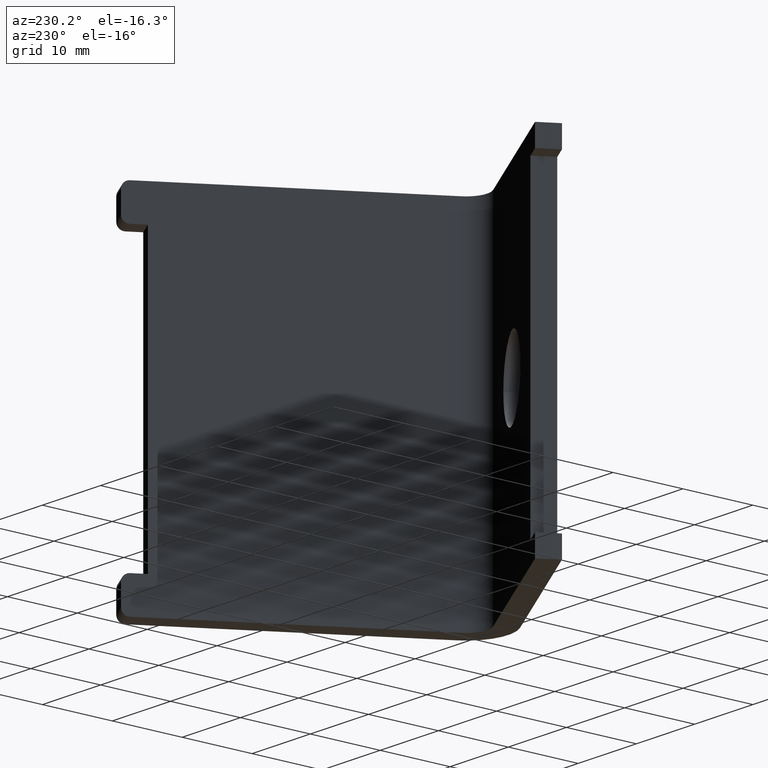
[diagram: clean part render]
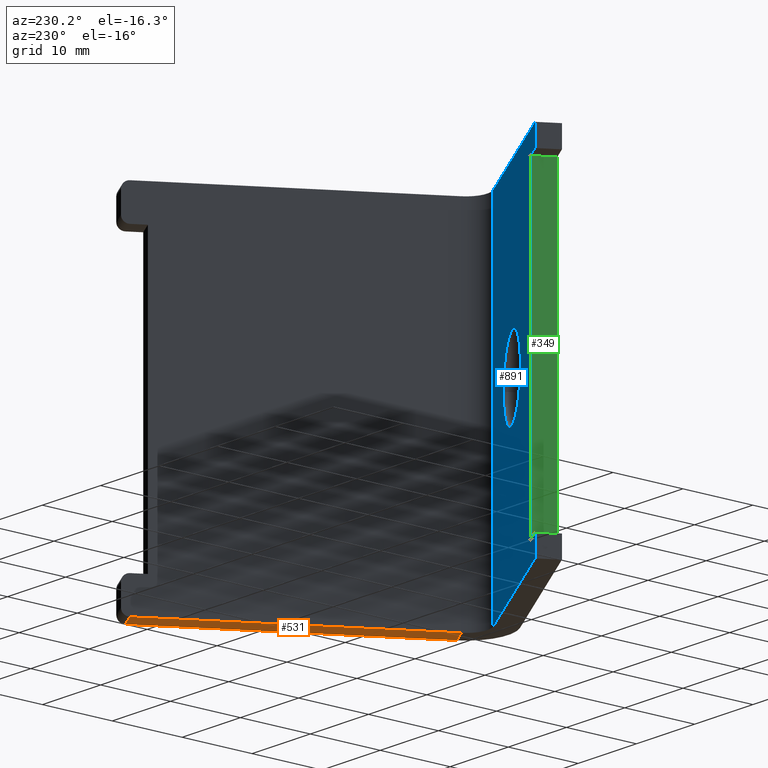
[diagram: same view with three faces highlighted in distinct colors, each labeled with its STEP entity id]
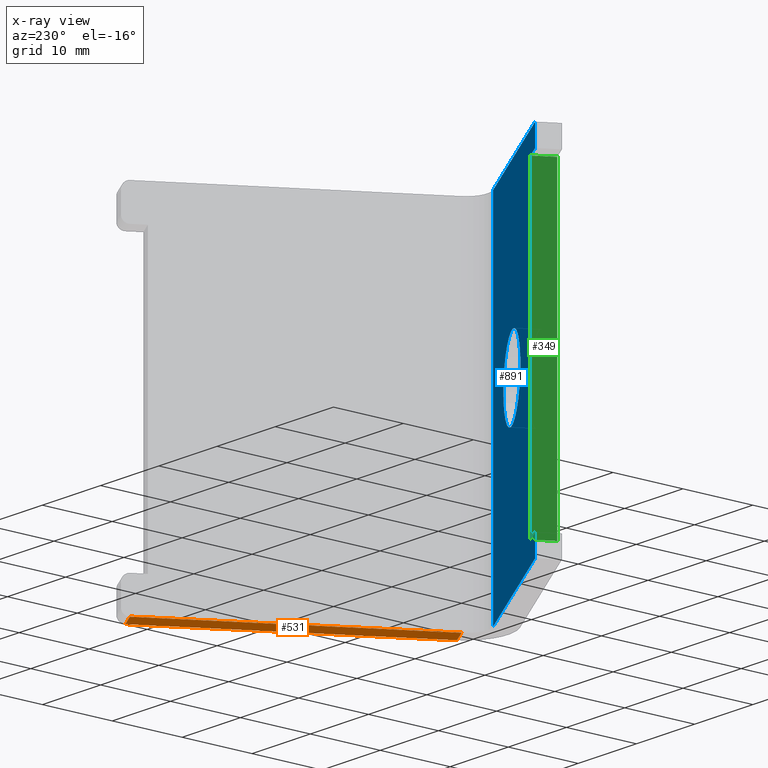
[diagram: x-ray of the same camera — body ghosted, the three highlighted faces saturated]
A machine part, auxiliary view with three faces highlighted in distinct colors.
The next image is the same camera in x-ray (body ghosted, the three faces saturated) — at least one of them is partly hidden behind the body in this view.
Their STEP definitions:

[orange] entity #531 — the highlighted planar face has unit normal (0, -0, 1).
#1 = LINE ( 'NONE', #845, #650 ) ;
#5 = FACE_OUTER_BOUND ( 'NONE', #496, .T. ) ;
#38 = VERTEX_POINT ( 'NONE', #241 ) ;
#57 = EDGE_CURVE ( 'NONE', #443, #668, #616, .T. ) ;
#65 = VECTOR ( 'NONE', #262, 1000.000000000000114 ) ;
#102 = VERTEX_POINT ( 'NONE', #750 ) ;
#110 = VECTOR ( 'NONE', #184, 1000.000000000000000 ) ;
#138 = AXIS2_PLACEMENT_3D ( 'NONE', #551, #300, #593 ) ;
#145 = DIRECTION ( 'NONE',  ( 0.5000000000000041078, 0.8660254037844363761, -0.000000000000000000 ) ) ;
#184 = DIRECTION ( 'NONE',  ( 0.5000000000000041078, 0.8660254037844363761, 0.000000000000000000 ) ) ;
#188 = CARTESIAN_POINT ( 'NONE',  ( 614.6829510954501075, 1028.447854427240600, -25.00000000000000000 ) ) ;
#189 = ORIENTED_EDGE ( 'NONE', *, *, #57, .T. ) ;
#240 = EDGE_CURVE ( 'NONE', #38, #102, #1, .T. ) ;
#241 = CARTESIAN_POINT ( 'NONE',  ( 633.1812291224796354, 1060.487811822590402, -25.00000000000000000 ) ) ;
#257 = CARTESIAN_POINT ( 'NONE',  ( 610.5848748840967346, 1027.349778215887454, -25.00000000000000000 ) ) ;
#262 = DIRECTION ( 'NONE',  ( -0.8660254037844408170, 0.4999999999999963363, -0.000000000000000000 ) ) ;
#277 = PLANE ( 'NONE',  #138 ) ;
#300 = DIRECTION ( 'NONE',  ( 0.000000000000000000, -0.000000000000000000, 1.000000000000000000 ) ) ;
#315 = EDGE_CURVE ( 'NONE', #443, #38, #562, .T. ) ;
#354 = DIRECTION ( 'NONE',  ( -0.8660254037844363761, 0.5000000000000041078, 0.000000000000000000 ) ) ;
#426 = ORIENTED_EDGE ( 'NONE', *, *, #703, .T. ) ;
#443 = VERTEX_POINT ( 'NONE', #188 ) ;
#461 = LINE ( 'NONE', #257, #110 ) ;
#496 = EDGE_LOOP ( 'NONE', ( #514, #747, #189, #426 ) ) ;
#514 = ORIENTED_EDGE ( 'NONE', *, *, #240, .F. ) ;
#531 = ADVANCED_FACE ( 'NONE', ( #5 ), #277, .F. ) ;
#551 = CARTESIAN_POINT ( 'NONE',  ( 610.5848748840967346, 1027.349778215887454, -25.00000000000000000 ) ) ;
#562 = LINE ( 'NONE', #786, #804 ) ;
#593 = DIRECTION ( 'NONE',  ( 0.5000000000000041078, 0.8660254037844363761, 0.000000000000000000 ) ) ;
#616 = LINE ( 'NONE', #770, #65 ) ;
#650 = VECTOR ( 'NONE', #354, 1000.000000000000000 ) ;
#668 = VERTEX_POINT ( 'NONE', #893 ) ;
#703 = EDGE_CURVE ( 'NONE', #668, #102, #461, .T. ) ;
#747 = ORIENTED_EDGE ( 'NONE', *, *, #315, .F. ) ;
#750 = CARTESIAN_POINT ( 'NONE',  ( 630.5831529111263762, 1061.987811822590402, -25.00000000000000000 ) ) ;
#770 = CARTESIAN_POINT ( 'NONE',  ( 612.0848748840968483, 1029.947854427240600, -25.00000000000000000 ) ) ;
#786 = CARTESIAN_POINT ( 'NONE',  ( 613.1829510954501075, 1025.849778215887227, -25.00000000000000000 ) ) ;
#804 = VECTOR ( 'NONE', #145, 1000.000000000000000 ) ;
#845 = CARTESIAN_POINT ( 'NONE',  ( 630.5831529111263762, 1061.987811822590402, -25.00000000000000000 ) ) ;
#893 = CARTESIAN_POINT ( 'NONE',  ( 612.0848748840968483, 1029.947854427240600, -25.00000000000000000 ) ) ;

[blue] entity #891 — the highlighted planar face has unit normal (0.5, 0.866, -0).
#27 = VERTEX_POINT ( 'NONE', #752 ) ;
#32 = CARTESIAN_POINT ( 'NONE',  ( 592.7385822518555187, 1037.653340071148705, 6.735557395301680737E-16 ) ) ;
#43 = CARTESIAN_POINT ( 'NONE',  ( 587.1094167670474917, 1040.903340279115355, -22.00000000000000355 ) ) ;
#50 = VECTOR ( 'NONE', #217, 1000.000000000000000 ) ;
#125 = CARTESIAN_POINT ( 'NONE',  ( 584.5113405556609223, 1042.403340279134682, 25.00000000000000000 ) ) ;
#135 = ORIENTED_EDGE ( 'NONE', *, *, #888, .F. ) ;
#142 = EDGE_CURVE ( 'NONE', #594, #227, #181, .T. ) ;
#144 = VERTEX_POINT ( 'NONE', #764 ) ;
#154 = AXIS2_PLACEMENT_3D ( 'NONE', #697, #264, #766 ) ;
#157 = VERTEX_POINT ( 'NONE', #621 ) ;
#161 = EDGE_CURVE ( 'NONE', #594, #180, #446, .T. ) ;
#170 = EDGE_CURVE ( 'NONE', #227, #27, #779, .T. ) ;
#180 = VERTEX_POINT ( 'NONE', #550 ) ;
#181 = LINE ( 'NONE', #125, #791 ) ;
#186 = FACE_BOUND ( 'NONE', #831, .T. ) ;
#209 = DIRECTION ( 'NONE',  ( 0.8660254037844403729, -0.4999999999999969469, 0.000000000000000000 ) ) ;
#212 = LINE ( 'NONE', #431, #50 ) ;
#217 = DIRECTION ( 'NONE',  ( -0.000000000000000000, -0.000000000000000000, -1.000000000000000000 ) ) ;
#227 = VERTEX_POINT ( 'NONE', #558 ) ;
#233 = ORIENTED_EDGE ( 'NONE', *, *, #526, .F. ) ;
#242 = DIRECTION ( 'NONE',  ( -0.8660254037844314912, 0.5000000000000124345, -0.000000000000000000 ) ) ;
#264 = DIRECTION ( 'NONE',  ( 0.4999999999999970024, 0.8660254037844404840, -0.000000000000000000 ) ) ;
#270 = CARTESIAN_POINT ( 'NONE',  ( 584.5113405556609223, 1042.403340279134682, 25.00000000000000000 ) ) ;
#273 = CARTESIAN_POINT ( 'NONE',  ( 597.5017219726637450, 1034.903340071152343, 0.000000000000000000 ) ) ;
#278 = EDGE_CURVE ( 'NONE', #820, #144, #857, .T. ) ;
#310 = VERTEX_POINT ( 'NONE', #853 ) ;
#314 = EDGE_CURVE ( 'NONE', #310, #27, #345, .T. ) ;
#320 = ORIENTED_EDGE ( 'NONE', *, *, #762, .F. ) ;
#335 = DIRECTION ( 'NONE',  ( -0.8660254037844404840, 0.4999999999999969469, 0.000000000000000000 ) ) ;
#340 = DIRECTION ( 'NONE',  ( 0.4999999999999970024, 0.8660254037844404840, -0.000000000000000000 ) ) ;
#345 = LINE ( 'NONE', #705, #620 ) ;
#353 = CARTESIAN_POINT ( 'NONE',  ( 584.5113405556609223, 1042.403340279134682, 25.00000000000000000 ) ) ;
#357 = VERTEX_POINT ( 'NONE', #32 ) ;
#362 = VECTOR ( 'NONE', #847, 1000.000000000000000 ) ;
#363 = CARTESIAN_POINT ( 'NONE',  ( 584.5113405556609223, 1042.403340279134682, 25.00000000000000000 ) ) ;
#381 = VECTOR ( 'NONE', #390, 1000.000000000000000 ) ;
#384 = CIRCLE ( 'NONE', #895, 5.499999999992874145 ) ;
#390 = DIRECTION ( 'NONE',  ( -0.000000000000000000, -0.000000000000000000, -1.000000000000000000 ) ) ;
#407 = DIRECTION ( 'NONE',  ( 0.8660254037844403729, -0.4999999999999969469, 0.000000000000000000 ) ) ;
#414 = FACE_OUTER_BOUND ( 'NONE', #645, .T. ) ;
#416 = CARTESIAN_POINT ( 'NONE',  ( 587.1094167670474917, 1040.903340279115355, -22.00000000000000355 ) ) ;
#429 = ORIENTED_EDGE ( 'NONE', *, *, #444, .T. ) ;
#431 = CARTESIAN_POINT ( 'NONE',  ( 587.1094167670474917, 1040.903340279115355, -22.00000000000000355 ) ) ;
#434 = CARTESIAN_POINT ( 'NONE',  ( 607.9867986727432481, 1028.849778215887454, 25.00000000000000000 ) ) ;
#444 = EDGE_CURVE ( 'NONE', #618, #180, #471, .T. ) ;
#446 = LINE ( 'NONE', #908, #381 ) ;
#471 = LINE ( 'NONE', #600, #849 ) ;
#494 = ORIENTED_EDGE ( 'NONE', *, *, #314, .F. ) ;
#526 = EDGE_CURVE ( 'NONE', #144, #310, #774, .T. ) ;
#528 = ORIENTED_EDGE ( 'NONE', *, *, #170, .T. ) ;
#543 = PLANE ( 'NONE',  #741 ) ;
#550 = CARTESIAN_POINT ( 'NONE',  ( 584.5113405556942325, 1042.403340279115582, 22.00000000000000355 ) ) ;
#558 = CARTESIAN_POINT ( 'NONE',  ( 607.9867986727432481, 1028.849778215887454, 25.00000000000000000 ) ) ;
#581 = EDGE_CURVE ( 'NONE', #618, #820, #212, .T. ) ;
#594 = VERTEX_POINT ( 'NONE', #363 ) ;
#595 = ORIENTED_EDGE ( 'NONE', *, *, #161, .F. ) ;
#600 = CARTESIAN_POINT ( 'NONE',  ( 587.1094167670474917, 1040.903340279115355, 22.00000000000000355 ) ) ;
#617 = ORIENTED_EDGE ( 'NONE', *, *, #581, .F. ) ;
#618 = VERTEX_POINT ( 'NONE', #868 ) ;
#620 = VECTOR ( 'NONE', #209, 1000.000000000000000 ) ;
#621 = CARTESIAN_POINT ( 'NONE',  ( 602.2648616934720849, 1032.153340071155753, 0.000000000000000000 ) ) ;
#629 = DIRECTION ( 'NONE',  ( -0.000000000000000000, -0.000000000000000000, -1.000000000000000000 ) ) ;
#645 = EDGE_LOOP ( 'NONE', ( #807, #617, #429, #595, #850, #528, #494, #233 ) ) ;
#664 = VECTOR ( 'NONE', #769, 1000.000000000000114 ) ;
#690 = DIRECTION ( 'NONE',  ( 0.4999999999999969469, 0.8660254037844404840, -0.000000000000000000 ) ) ;
#697 = CARTESIAN_POINT ( 'NONE',  ( 597.5017219726637450, 1034.903340071152343, 0.000000000000000000 ) ) ;
#705 = CARTESIAN_POINT ( 'NONE',  ( 584.5113405556609223, 1042.403340279134682, -25.00000000000000000 ) ) ;
#709 = VECTOR ( 'NONE', #629, 1000.000000000000000 ) ;
#728 = CIRCLE ( 'NONE', #154, 5.499999999992874145 ) ;
#741 = AXIS2_PLACEMENT_3D ( 'NONE', #270, #690, #335 ) ;
#752 = CARTESIAN_POINT ( 'NONE',  ( 607.9867986727432481, 1028.849778215887454, -25.00000000000000000 ) ) ;
#762 = EDGE_CURVE ( 'NONE', #157, #357, #384, .T. ) ;
#764 = CARTESIAN_POINT ( 'NONE',  ( 584.5113405556942325, 1042.403340279115582, -22.00000000000000355 ) ) ;
#766 = DIRECTION ( 'NONE',  ( -0.8660254037844344888, 0.5000000000000073275, 0.000000000000000000 ) ) ;
#769 = DIRECTION ( 'NONE',  ( -0.8660254037844314912, 0.5000000000000124345, -0.000000000000000000 ) ) ;
#774 = LINE ( 'NONE', #353, #709 ) ;
#779 = LINE ( 'NONE', #434, #362 ) ;
#791 = VECTOR ( 'NONE', #407, 1000.000000000000000 ) ;
#807 = ORIENTED_EDGE ( 'NONE', *, *, #278, .F. ) ;
#820 = VERTEX_POINT ( 'NONE', #43 ) ;
#831 = EDGE_LOOP ( 'NONE', ( #320, #135 ) ) ;
#847 = DIRECTION ( 'NONE',  ( -0.000000000000000000, -0.000000000000000000, -1.000000000000000000 ) ) ;
#849 = VECTOR ( 'NONE', #242, 1000.000000000000114 ) ;
#850 = ORIENTED_EDGE ( 'NONE', *, *, #142, .T. ) ;
#853 = CARTESIAN_POINT ( 'NONE',  ( 584.5113405556609223, 1042.403340279134682, -25.00000000000000000 ) ) ;
#854 = DIRECTION ( 'NONE',  ( -0.8660254037844344888, 0.5000000000000073275, 0.000000000000000000 ) ) ;
#857 = LINE ( 'NONE', #416, #664 ) ;
#868 = CARTESIAN_POINT ( 'NONE',  ( 587.1094167670474917, 1040.903340279115355, 22.00000000000000355 ) ) ;
#888 = EDGE_CURVE ( 'NONE', #357, #157, #728, .T. ) ;
#891 = ADVANCED_FACE ( 'NONE', ( #186, #414 ), #543, .T. ) ;
#895 = AXIS2_PLACEMENT_3D ( 'NONE', #273, #340, #854 ) ;
#908 = CARTESIAN_POINT ( 'NONE',  ( 584.5113405556609223, 1042.403340279134682, 25.00000000000000000 ) ) ;

[green] entity #349 — the highlighted planar face has unit normal (0.866, -0.5, 0).
#43 = CARTESIAN_POINT ( 'NONE',  ( 587.1094167670474917, 1040.903340279115355, -22.00000000000000355 ) ) ;
#50 = VECTOR ( 'NONE', #217, 1000.000000000000000 ) ;
#85 = DIRECTION ( 'NONE',  ( 0.4999999999999969469, 0.8660254037844404840, -0.000000000000000000 ) ) ;
#97 = CARTESIAN_POINT ( 'NONE',  ( 587.1094167670474917, 1040.903340279115355, -22.00000000000000355 ) ) ;
#129 = DIRECTION ( 'NONE',  ( 0.4999999999999969469, 0.8660254037844404840, -0.000000000000000000 ) ) ;
#132 = EDGE_CURVE ( 'NONE', #523, #618, #169, .T. ) ;
#143 = VERTEX_POINT ( 'NONE', #329 ) ;
#148 = CARTESIAN_POINT ( 'NONE',  ( 587.1094167670474917, 1040.903340279115355, -22.00000000000000355 ) ) ;
#155 = DIRECTION ( 'NONE',  ( -0.000000000000000000, -0.000000000000000000, -1.000000000000000000 ) ) ;
#162 = ORIENTED_EDGE ( 'NONE', *, *, #581, .T. ) ;
#163 = LINE ( 'NONE', #515, #404 ) ;
#169 = LINE ( 'NONE', #473, #753 ) ;
#182 = ORIENTED_EDGE ( 'NONE', *, *, #597, .F. ) ;
#212 = LINE ( 'NONE', #431, #50 ) ;
#217 = DIRECTION ( 'NONE',  ( -0.000000000000000000, -0.000000000000000000, -1.000000000000000000 ) ) ;
#224 = DIRECTION ( 'NONE',  ( 0.8660254037844404840, -0.4999999999999969469, 0.000000000000000000 ) ) ;
#329 = CARTESIAN_POINT ( 'NONE',  ( 585.6094167670476054, 1038.305264067762209, -22.00000000000002487 ) ) ;
#349 = ADVANCED_FACE ( 'NONE', ( #715 ), #582, .F. ) ;
#404 = VECTOR ( 'NONE', #155, 1000.000000000000000 ) ;
#417 = AXIS2_PLACEMENT_3D ( 'NONE', #97, #224, #799 ) ;
#431 = CARTESIAN_POINT ( 'NONE',  ( 587.1094167670474917, 1040.903340279115355, -22.00000000000000355 ) ) ;
#441 = VECTOR ( 'NONE', #85, 1000.000000000000114 ) ;
#462 = EDGE_CURVE ( 'NONE', #143, #820, #476, .T. ) ;
#465 = ORIENTED_EDGE ( 'NONE', *, *, #462, .F. ) ;
#473 = CARTESIAN_POINT ( 'NONE',  ( 587.1094167670474917, 1040.903340279115355, 22.00000000000000355 ) ) ;
#476 = LINE ( 'NONE', #148, #441 ) ;
#478 = CARTESIAN_POINT ( 'NONE',  ( 585.6094167670476054, 1038.305264067762209, 22.00000000000000000 ) ) ;
#485 = ORIENTED_EDGE ( 'NONE', *, *, #132, .T. ) ;
#515 = CARTESIAN_POINT ( 'NONE',  ( 585.6094167670476054, 1038.305264067762209, 25.00000000000000000 ) ) ;
#523 = VERTEX_POINT ( 'NONE', #478 ) ;
#581 = EDGE_CURVE ( 'NONE', #618, #820, #212, .T. ) ;
#582 = PLANE ( 'NONE',  #417 ) ;
#597 = EDGE_CURVE ( 'NONE', #523, #143, #163, .T. ) ;
#618 = VERTEX_POINT ( 'NONE', #868 ) ;
#623 = EDGE_LOOP ( 'NONE', ( #465, #182, #485, #162 ) ) ;
#715 = FACE_OUTER_BOUND ( 'NONE', #623, .T. ) ;
#753 = VECTOR ( 'NONE', #129, 1000.000000000000114 ) ;
#799 = DIRECTION ( 'NONE',  ( -0.000000000000000000, -0.000000000000000000, -1.000000000000000000 ) ) ;
#820 = VERTEX_POINT ( 'NONE', #43 ) ;
#868 = CARTESIAN_POINT ( 'NONE',  ( 587.1094167670474917, 1040.903340279115355, 22.00000000000000355 ) ) ;